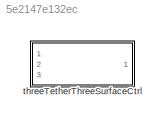
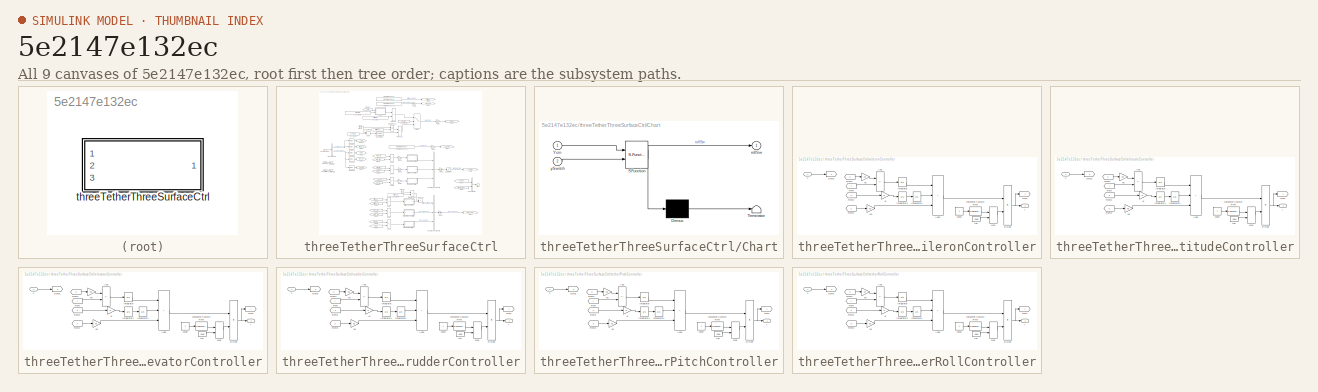
[diagram: thumbnail index - all 9 canvases of the model, root first then tree order]
MODEL slx_5e2147e132ec
KIND library
CONFIG AbsTol = auto
CONFIG EnableMultiTasking = off
CONFIG FixedStep = auto
CONFIG MaxStep = auto
CONFIG MinStep = auto
CONFIG RelTol = 1e-3
CONFIG SampleTimeConstraint = Unconstrained
CONFIG SolverName = VariableStepAuto
CONFIG StartTime = 0.0
CONFIG StopTime = 10.0
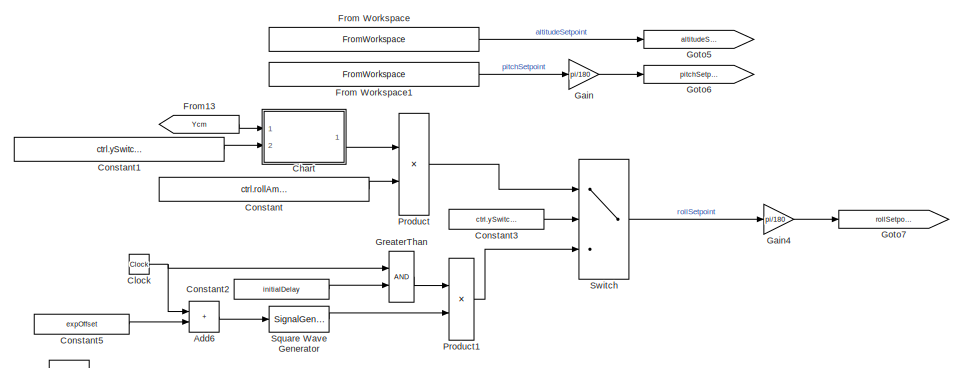
[diagram: threeTetherThreeSurfaceCtrl - part 1/2, top center region]
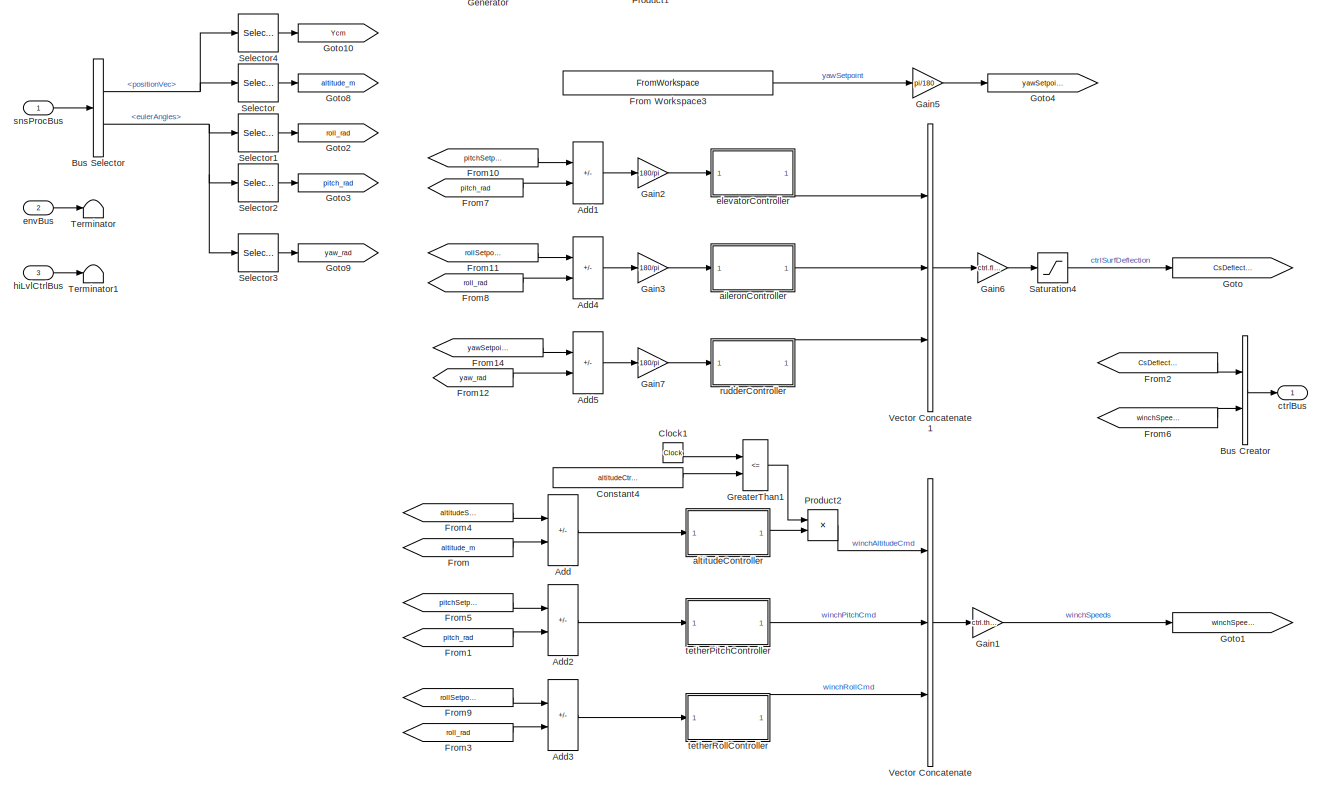
[diagram: threeTetherThreeSurfaceCtrl - part 2/2, full width, middle band]
BLOCK [SubSystem] threeTetherThreeSurfaceCtrl
  InitFcn = initializeBussesFromBlock(gcb)
  LoadFcn = initializeBussesFromBlock(gcb)
  Ports = [3, 1]
  RequestExecContextInheritance = off
  StartFcn = initializeBussesFromBlock(gcb)
  VariantControl = strcmpi(FLIGHTCONTROLLER,'threeTetherThreeSurfaceCtrl')
BLOCK [Sum] threeTetherThreeSurfaceCtrl/Add
  IconShape = rectangular
  Inputs = +-
  Ports = [2, 1]
BLOCK [Sum] threeTetherThreeSurfaceCtrl/Add1
  IconShape = rectangular
  Inputs = +-
  Ports = [2, 1]
BLOCK [Sum] threeTetherThreeSurfaceCtrl/Add2
  IconShape = rectangular
  Inputs = +-
  Ports = [2, 1]
BLOCK [Sum] threeTetherThreeSurfaceCtrl/Add3
  IconShape = rectangular
  Inputs = +-
  Ports = [2, 1]
BLOCK [Sum] threeTetherThreeSurfaceCtrl/Add4
  IconShape = rectangular
  Inputs = +-
  Ports = [2, 1]
BLOCK [Sum] threeTetherThreeSurfaceCtrl/Add5
  IconShape = rectangular
  Inputs = +-
  Ports = [2, 1]
BLOCK [Sum] threeTetherThreeSurfaceCtrl/Add6
  IconShape = rectangular
  Ports = [2, 1]
BLOCK [BusCreator] threeTetherThreeSurfaceCtrl/Bus Creator
  DisplayOption = bar
  InheritFromInputs = on
  Inputs = 2
  OutDataTypeStr = Bus: fltCtrlBus
  Ports = [2, 1]
BLOCK [BusSelector] threeTetherThreeSurfaceCtrl/Bus Selector
  OutputSignals = positionVec,eulerAngles
  Ports = [1, 2]
BLOCK [SubSystem] threeTetherThreeSurfaceCtrl/Chart
  ErrorFcn = Stateflow.Translate.translate
  PermitHierarchicalResolution = ExplicitOnly
  Ports = [2, 1]
  RequestExecContextInheritance = off
  SFBlockType = Chart
  TreatAsAtomicUnit = on
BLOCK [Demux] threeTetherThreeSurfaceCtrl/Chart/ Demux 
  Outputs = 1
  Ports = [1, 1]
BLOCK [S-Function] threeTetherThreeSurfaceCtrl/Chart/ SFunction 
  EnableBusSupport = off
  FunctionName = sf_sfun
  PortCounts = [2 2]
  Ports = [2, 2]
  SFcnIsStateOwnerBlock = off
  SFunctionDeploymentMode = off
  Tag = Stateflow S-Function 15
BLOCK [Terminator] threeTetherThreeSurfaceCtrl/Chart/ Terminator 
BLOCK [Inport] threeTetherThreeSurfaceCtrl/Chart/Ycm
BLOCK [Outport] threeTetherThreeSurfaceCtrl/Chart/rollSw
  VectorParamsAs1DForOutWhenUnconnected = off
BLOCK [Inport] threeTetherThreeSurfaceCtrl/Chart/ySwitch
  Port = 2
BLOCK [Clock] threeTetherThreeSurfaceCtrl/Clock
BLOCK [Clock] threeTetherThreeSurfaceCtrl/Clock1
BLOCK [Constant] threeTetherThreeSurfaceCtrl/Constant
  Value = ctrl.rollAmp.Value
BLOCK [Constant] threeTetherThreeSurfaceCtrl/Constant1
  Value = ctrl.ySwitch.Value
BLOCK [Constant] threeTetherThreeSurfaceCtrl/Constant2
  Value = initialDelay
BLOCK [Constant] threeTetherThreeSurfaceCtrl/Constant3
  Value = ctrl.ySwitch.Value
BLOCK [Constant] threeTetherThreeSurfaceCtrl/Constant4
  Value = altitudeCtrlShutOffDelay
BLOCK [Constant] threeTetherThreeSurfaceCtrl/Constant5
  Value = expOffset
BLOCK [From] threeTetherThreeSurfaceCtrl/From
  GotoTag = altitude_m
BLOCK [FromWorkspace] threeTetherThreeSurfaceCtrl/From Workspace
  VariableName = ctrl.altiSP.Value
BLOCK [FromWorkspace] threeTetherThreeSurfaceCtrl/From Workspace1
  VariableName = ctrl.pitchSP.Value
BLOCK [FromWorkspace] threeTetherThreeSurfaceCtrl/From Workspace3
  VariableName = ctrl.yawSP.Value
BLOCK [From] threeTetherThreeSurfaceCtrl/From1
  GotoTag = pitch_rad
BLOCK [From] threeTetherThreeSurfaceCtrl/From10
  GotoTag = pitchSetpoint_rad
BLOCK [From] threeTetherThreeSurfaceCtrl/From11
  GotoTag = rollSetpoint_rad
BLOCK [From] threeTetherThreeSurfaceCtrl/From12
  GotoTag = yaw_rad
BLOCK [From] threeTetherThreeSurfaceCtrl/From13
  GotoTag = Ycm
BLOCK [From] threeTetherThreeSurfaceCtrl/From14
  GotoTag = yawSetpoint_rad
BLOCK [From] threeTetherThreeSurfaceCtrl/From2
  GotoTag = CsDeflectn_deg
BLOCK [From] threeTetherThreeSurfaceCtrl/From3
  GotoTag = roll_rad
BLOCK [From] threeTetherThreeSurfaceCtrl/From4
  GotoTag = altitudeSetpoint_m
BLOCK [From] threeTetherThreeSurfaceCtrl/From5
  GotoTag = pitchSetpoint_rad
BLOCK [From] threeTetherThreeSurfaceCtrl/From6
  GotoTag = winchSpeeds_mPs
BLOCK [From] threeTetherThreeSurfaceCtrl/From7
  GotoTag = pitch_rad
BLOCK [From] threeTetherThreeSurfaceCtrl/From8
  GotoTag = roll_rad
BLOCK [From] threeTetherThreeSurfaceCtrl/From9
  GotoTag = rollSetpoint_rad
BLOCK [Gain] threeTetherThreeSurfaceCtrl/Gain
  Gain = pi/180
BLOCK [Gain] threeTetherThreeSurfaceCtrl/Gain1
  Gain = ctrl.thrAllocationMat.Value
  Multiplication = Matrix(K*u)
BLOCK [Gain] threeTetherThreeSurfaceCtrl/Gain2
  Gain = 180/pi
BLOCK [Gain] threeTetherThreeSurfaceCtrl/Gain3
  Gain = 180/pi
BLOCK [Gain] threeTetherThreeSurfaceCtrl/Gain4
  Gain = pi/180
BLOCK [Gain] threeTetherThreeSurfaceCtrl/Gain5
  Gain = pi/180
BLOCK [Gain] threeTetherThreeSurfaceCtrl/Gain6
  Gain = ctrl.fltCtrlSurfAllocationMat.Value
  Multiplication = Matrix(K*u)
BLOCK [Gain] threeTetherThreeSurfaceCtrl/Gain7
  Gain = 180/pi
BLOCK [Goto] threeTetherThreeSurfaceCtrl/Goto
  GotoTag = CsDeflectn_deg
BLOCK [Goto] threeTetherThreeSurfaceCtrl/Goto1
  GotoTag = winchSpeeds_mPs
BLOCK [Goto] threeTetherThreeSurfaceCtrl/Goto10
  GotoTag = Ycm
BLOCK [Goto] threeTetherThreeSurfaceCtrl/Goto2
  GotoTag = roll_rad
BLOCK [Goto] threeTetherThreeSurfaceCtrl/Goto3
  GotoTag = pitch_rad
BLOCK [Goto] threeTetherThreeSurfaceCtrl/Goto4
  GotoTag = yawSetpoint_rad
BLOCK [Goto] threeTetherThreeSurfaceCtrl/Goto5
  GotoTag = altitudeSetpoint_m
BLOCK [Goto] threeTetherThreeSurfaceCtrl/Goto6
  GotoTag = pitchSetpoint_rad
BLOCK [Goto] threeTetherThreeSurfaceCtrl/Goto7
  GotoTag = rollSetpoint_rad
BLOCK [Goto] threeTetherThreeSurfaceCtrl/Goto8
  GotoTag = altitude_m
BLOCK [Goto] threeTetherThreeSurfaceCtrl/Goto9
  GotoTag = yaw_rad
BLOCK [RelationalOperator] threeTetherThreeSurfaceCtrl/GreaterThan
  InputSameDT = off
  OutDataTypeStr = boolean
  Ports = [2, 1]
  RndMeth = Simplest
BLOCK [RelationalOperator] threeTetherThreeSurfaceCtrl/GreaterThan1
  InputSameDT = off
  Operator = <=
  OutDataTypeStr = boolean
  Ports = [2, 1]
  RndMeth = Simplest
BLOCK [Product] threeTetherThreeSurfaceCtrl/Product
  Ports = [2, 1]
BLOCK [Product] threeTetherThreeSurfaceCtrl/Product1
  Ports = [2, 1]
BLOCK [Product] threeTetherThreeSurfaceCtrl/Product2
  Ports = [2, 1]
BLOCK [Saturate] threeTetherThreeSurfaceCtrl/Saturation4
  LowerLimit = ctrl.outputSat.lowerLimit.Value
  UpperLimit = ctrl.outputSat.upperLimit.Value
BLOCK [Selector] threeTetherThreeSurfaceCtrl/Selector
  IndexOptions = Index vector (dialog)
  Indices = 3
  InputPortWidth = 3
  OutputSizes = 1
  Ports = [1, 1]
BLOCK [Selector] threeTetherThreeSurfaceCtrl/Selector1
  IndexOptions = Index vector (dialog)
  Indices = 1
  InputPortWidth = 3
  OutputSizes = 1
  Ports = [1, 1]
BLOCK [Selector] threeTetherThreeSurfaceCtrl/Selector2
  IndexOptions = Index vector (dialog)
  Indices = 2
  InputPortWidth = 3
  OutputSizes = 1
  Ports = [1, 1]
BLOCK [Selector] threeTetherThreeSurfaceCtrl/Selector3
  IndexOptions = Index vector (dialog)
  Indices = 3
  InputPortWidth = 3
  OutputSizes = 1
  Ports = [1, 1]
BLOCK [Selector] threeTetherThreeSurfaceCtrl/Selector4
  IndexOptions = Index vector (dialog)
  Indices = 2
  InputPortWidth = 3
  OutputSizes = 1
  Ports = [1, 1]
BLOCK [SignalGenerator] threeTetherThreeSurfaceCtrl/Square Wave Generator
  Amplitude = ctrl.rollAmp.Value
  Frequency = 1/ctrl.rollPeriod.Value
  Ports = [1, 1]
  TimeSource = Use external signal
  WaveForm = square
BLOCK [Switch] threeTetherThreeSurfaceCtrl/Switch
  Criteria = u2 ~= 0
  InputSameDT = off
  SaturateOnIntegerOverflow = off
BLOCK [Terminator] threeTetherThreeSurfaceCtrl/Terminator
BLOCK [Terminator] threeTetherThreeSurfaceCtrl/Terminator1
BLOCK [Concatenate] threeTetherThreeSurfaceCtrl/Vector Concatenate
  NumInputs = 3
  Ports = [3, 1]
BLOCK [Concatenate] threeTetherThreeSurfaceCtrl/Vector Concatenate1
  NumInputs = 3
  Ports = [3, 1]
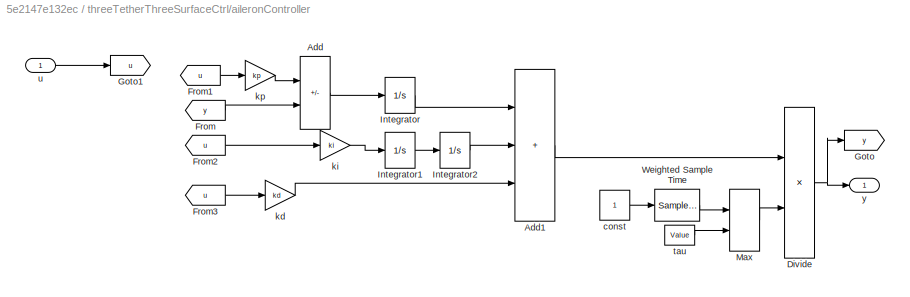
BLOCK [SubSystem] threeTetherThreeSurfaceCtrl/aileronController
  AncestorBlock = filteredPIDController_ul/filteredPIDController
  Ports = [1, 1]
  RequestExecContextInheritance = off
BLOCK [Sum] threeTetherThreeSurfaceCtrl/aileronController/Add
  IconShape = rectangular
  Inputs = +-
  Ports = [2, 1]
BLOCK [Sum] threeTetherThreeSurfaceCtrl/aileronController/Add1
  IconShape = rectangular
  Inputs = +++
  Ports = [3, 1]
BLOCK [Product] threeTetherThreeSurfaceCtrl/aileronController/Divide
  Inputs = */
  Ports = [2, 1]
BLOCK [From] threeTetherThreeSurfaceCtrl/aileronController/From
  GotoTag = y
BLOCK [From] threeTetherThreeSurfaceCtrl/aileronController/From1
  GotoTag = u
BLOCK [From] threeTetherThreeSurfaceCtrl/aileronController/From2
  GotoTag = u
BLOCK [From] threeTetherThreeSurfaceCtrl/aileronController/From3
  GotoTag = u
BLOCK [Goto] threeTetherThreeSurfaceCtrl/aileronController/Goto
  GotoTag = y
BLOCK [Goto] threeTetherThreeSurfaceCtrl/aileronController/Goto1
  GotoTag = u
BLOCK [Integrator] threeTetherThreeSurfaceCtrl/aileronController/Integrator
  Ports = [1, 1]
BLOCK [Integrator] threeTetherThreeSurfaceCtrl/aileronController/Integrator1
  Ports = [1, 1]
BLOCK [Integrator] threeTetherThreeSurfaceCtrl/aileronController/Integrator2
  Ports = [1, 1]
BLOCK [MinMax] threeTetherThreeSurfaceCtrl/aileronController/Max
  Function = max
  Inputs = 2
  Ports = [2, 1]
BLOCK [SampleTimeMath] threeTetherThreeSurfaceCtrl/aileronController/Weighted Sample Time
  TsampMathOp = Ts Only
BLOCK [Constant] threeTetherThreeSurfaceCtrl/aileronController/const
BLOCK [Gain] threeTetherThreeSurfaceCtrl/aileronController/kd
  Gain = kd
BLOCK [Gain] threeTetherThreeSurfaceCtrl/aileronController/ki
  Gain = ki
BLOCK [Gain] threeTetherThreeSurfaceCtrl/aileronController/kp
  Gain = kp
BLOCK [Constant] threeTetherThreeSurfaceCtrl/aileronController/tau
  Value = Value
BLOCK [Inport] threeTetherThreeSurfaceCtrl/aileronController/u
  PortDimensions = 1
BLOCK [Outport] threeTetherThreeSurfaceCtrl/aileronController/y
  PortDimensions = 1
  VectorParamsAs1DForOutWhenUnconnected = off
BLOCK [SubSystem] threeTetherThreeSurfaceCtrl/altitudeController
  AncestorBlock = filteredPIDController_ul/filteredPIDController
  Ports = [1, 1]
  RequestExecContextInheritance = off
BLOCK [Sum] threeTetherThreeSurfaceCtrl/altitudeController/Add
  IconShape = rectangular
  Inputs = +-
  Ports = [2, 1]
BLOCK [Sum] threeTetherThreeSurfaceCtrl/altitudeController/Add1
  IconShape = rectangular
  Inputs = +++
  Ports = [3, 1]
BLOCK [Product] threeTetherThreeSurfaceCtrl/altitudeController/Divide
  Inputs = */
  Ports = [2, 1]
BLOCK [From] threeTetherThreeSurfaceCtrl/altitudeController/From
  GotoTag = y
BLOCK [From] threeTetherThreeSurfaceCtrl/altitudeController/From1
  GotoTag = u
BLOCK [From] threeTetherThreeSurfaceCtrl/altitudeController/From2
  GotoTag = u
BLOCK [From] threeTetherThreeSurfaceCtrl/altitudeController/From3
  GotoTag = u
BLOCK [Goto] threeTetherThreeSurfaceCtrl/altitudeController/Goto
  GotoTag = y
BLOCK [Goto] threeTetherThreeSurfaceCtrl/altitudeController/Goto1
  GotoTag = u
BLOCK [Integrator] threeTetherThreeSurfaceCtrl/altitudeController/Integrator
  Ports = [1, 1]
BLOCK [Integrator] threeTetherThreeSurfaceCtrl/altitudeController/Integrator1
  Ports = [1, 1]
BLOCK [Integrator] threeTetherThreeSurfaceCtrl/altitudeController/Integrator2
  Ports = [1, 1]
BLOCK [MinMax] threeTetherThreeSurfaceCtrl/altitudeController/Max
  Function = max
  Inputs = 2
  Ports = [2, 1]
BLOCK [SampleTimeMath] threeTetherThreeSurfaceCtrl/altitudeController/Weighted Sample Time
  TsampMathOp = Ts Only
BLOCK [Constant] threeTetherThreeSurfaceCtrl/altitudeController/const
BLOCK [Gain] threeTetherThreeSurfaceCtrl/altitudeController/kd
  Gain = kd
BLOCK [Gain] threeTetherThreeSurfaceCtrl/altitudeController/ki
  Gain = ki
BLOCK [Gain] threeTetherThreeSurfaceCtrl/altitudeController/kp
  Gain = kp
BLOCK [Constant] threeTetherThreeSurfaceCtrl/altitudeController/tau
  Value = Value
BLOCK [Inport] threeTetherThreeSurfaceCtrl/altitudeController/u
  PortDimensions = 1
BLOCK [Outport] threeTetherThreeSurfaceCtrl/altitudeController/y
  PortDimensions = 1
  VectorParamsAs1DForOutWhenUnconnected = off
BLOCK [Outport] threeTetherThreeSurfaceCtrl/ctrlBus
  OutDataTypeStr = Bus: fltCtrlBus
  VectorParamsAs1DForOutWhenUnconnected = off
BLOCK [SubSystem] threeTetherThreeSurfaceCtrl/elevatorController
  AncestorBlock = filteredPIDController_ul/filteredPIDController
  Ports = [1, 1]
  RequestExecContextInheritance = off
BLOCK [Sum] threeTetherThreeSurfaceCtrl/elevatorController/Add
  IconShape = rectangular
  Inputs = +-
  Ports = [2, 1]
BLOCK [Sum] threeTetherThreeSurfaceCtrl/elevatorController/Add1
  IconShape = rectangular
  Inputs = +++
  Ports = [3, 1]
BLOCK [Product] threeTetherThreeSurfaceCtrl/elevatorController/Divide
  Inputs = */
  Ports = [2, 1]
BLOCK [From] threeTetherThreeSurfaceCtrl/elevatorController/From
  GotoTag = y
BLOCK [From] threeTetherThreeSurfaceCtrl/elevatorController/From1
  GotoTag = u
BLOCK [From] threeTetherThreeSurfaceCtrl/elevatorController/From2
  GotoTag = u
BLOCK [From] threeTetherThreeSurfaceCtrl/elevatorController/From3
  GotoTag = u
BLOCK [Goto] threeTetherThreeSurfaceCtrl/elevatorController/Goto
  GotoTag = y
BLOCK [Goto] threeTetherThreeSurfaceCtrl/elevatorController/Goto1
  GotoTag = u
BLOCK [Integrator] threeTetherThreeSurfaceCtrl/elevatorController/Integrator
  Ports = [1, 1]
BLOCK [Integrator] threeTetherThreeSurfaceCtrl/elevatorController/Integrator1
  Ports = [1, 1]
BLOCK [Integrator] threeTetherThreeSurfaceCtrl/elevatorController/Integrator2
  Ports = [1, 1]
BLOCK [MinMax] threeTetherThreeSurfaceCtrl/elevatorController/Max
  Function = max
  Inputs = 2
  Ports = [2, 1]
BLOCK [SampleTimeMath] threeTetherThreeSurfaceCtrl/elevatorController/Weighted Sample Time
  TsampMathOp = Ts Only
BLOCK [Constant] threeTetherThreeSurfaceCtrl/elevatorController/const
BLOCK [Gain] threeTetherThreeSurfaceCtrl/elevatorController/kd
  Gain = kd
BLOCK [Gain] threeTetherThreeSurfaceCtrl/elevatorController/ki
  Gain = ki
BLOCK [Gain] threeTetherThreeSurfaceCtrl/elevatorController/kp
  Gain = kp
BLOCK [Constant] threeTetherThreeSurfaceCtrl/elevatorController/tau
  Value = Value
BLOCK [Inport] threeTetherThreeSurfaceCtrl/elevatorController/u
  PortDimensions = 1
BLOCK [Outport] threeTetherThreeSurfaceCtrl/elevatorController/y
  PortDimensions = 1
  VectorParamsAs1DForOutWhenUnconnected = off
BLOCK [Inport] threeTetherThreeSurfaceCtrl/envBus
  OutDataTypeStr = Bus: envBus
  Port = 2
BLOCK [Inport] threeTetherThreeSurfaceCtrl/hiLvlCtrlBus
  OutDataTypeStr = Bus: hiLvlCtrlBus
  Port = 3
BLOCK [SubSystem] threeTetherThreeSurfaceCtrl/rudderController
  AncestorBlock = filteredPIDController_ul/filteredPIDController
  Ports = [1, 1]
  RequestExecContextInheritance = off
BLOCK [Sum] threeTetherThreeSurfaceCtrl/rudderController/Add
  IconShape = rectangular
  Inputs = +-
  Ports = [2, 1]
BLOCK [Sum] threeTetherThreeSurfaceCtrl/rudderController/Add1
  IconShape = rectangular
  Inputs = +++
  Ports = [3, 1]
BLOCK [Product] threeTetherThreeSurfaceCtrl/rudderController/Divide
  Inputs = */
  Ports = [2, 1]
BLOCK [From] threeTetherThreeSurfaceCtrl/rudderController/From
  GotoTag = y
BLOCK [From] threeTetherThreeSurfaceCtrl/rudderController/From1
  GotoTag = u
BLOCK [From] threeTetherThreeSurfaceCtrl/rudderController/From2
  GotoTag = u
BLOCK [From] threeTetherThreeSurfaceCtrl/rudderController/From3
  GotoTag = u
BLOCK [Goto] threeTetherThreeSurfaceCtrl/rudderController/Goto
  GotoTag = y
BLOCK [Goto] threeTetherThreeSurfaceCtrl/rudderController/Goto1
  GotoTag = u
BLOCK [Integrator] threeTetherThreeSurfaceCtrl/rudderController/Integrator
  Ports = [1, 1]
BLOCK [Integrator] threeTetherThreeSurfaceCtrl/rudderController/Integrator1
  Ports = [1, 1]
BLOCK [Integrator] threeTetherThreeSurfaceCtrl/rudderController/Integrator2
  Ports = [1, 1]
BLOCK [MinMax] threeTetherThreeSurfaceCtrl/rudderController/Max
  Function = max
  Inputs = 2
  Ports = [2, 1]
BLOCK [SampleTimeMath] threeTetherThreeSurfaceCtrl/rudderController/Weighted Sample Time
  TsampMathOp = Ts Only
BLOCK [Constant] threeTetherThreeSurfaceCtrl/rudderController/const
BLOCK [Gain] threeTetherThreeSurfaceCtrl/rudderController/kd
  Gain = kd
BLOCK [Gain] threeTetherThreeSurfaceCtrl/rudderController/ki
  Gain = ki
BLOCK [Gain] threeTetherThreeSurfaceCtrl/rudderController/kp
  Gain = kp
BLOCK [Constant] threeTetherThreeSurfaceCtrl/rudderController/tau
  Value = Value
BLOCK [Inport] threeTetherThreeSurfaceCtrl/rudderController/u
  PortDimensions = 1
BLOCK [Outport] threeTetherThreeSurfaceCtrl/rudderController/y
  PortDimensions = 1
  VectorParamsAs1DForOutWhenUnconnected = off
BLOCK [Inport] threeTetherThreeSurfaceCtrl/snsProcBus
  OutDataTypeStr = Bus: sensorsProcessingBus
BLOCK [SubSystem] threeTetherThreeSurfaceCtrl/tetherPitchController
  AncestorBlock = filteredPIDController_ul/filteredPIDController
  Ports = [1, 1]
  RequestExecContextInheritance = off
BLOCK [Sum] threeTetherThreeSurfaceCtrl/tetherPitchController/Add
  IconShape = rectangular
  Inputs = +-
  Ports = [2, 1]
BLOCK [Sum] threeTetherThreeSurfaceCtrl/tetherPitchController/Add1
  IconShape = rectangular
  Inputs = +++
  Ports = [3, 1]
BLOCK [Product] threeTetherThreeSurfaceCtrl/tetherPitchController/Divide
  Inputs = */
  Ports = [2, 1]
BLOCK [From] threeTetherThreeSurfaceCtrl/tetherPitchController/From
  GotoTag = y
BLOCK [From] threeTetherThreeSurfaceCtrl/tetherPitchController/From1
  GotoTag = u
BLOCK [From] threeTetherThreeSurfaceCtrl/tetherPitchController/From2
  GotoTag = u
BLOCK [From] threeTetherThreeSurfaceCtrl/tetherPitchController/From3
  GotoTag = u
BLOCK [Goto] threeTetherThreeSurfaceCtrl/tetherPitchController/Goto
  GotoTag = y
BLOCK [Goto] threeTetherThreeSurfaceCtrl/tetherPitchController/Goto1
  GotoTag = u
BLOCK [Integrator] threeTetherThreeSurfaceCtrl/tetherPitchController/Integrator
  Ports = [1, 1]
BLOCK [Integrator] threeTetherThreeSurfaceCtrl/tetherPitchController/Integrator1
  Ports = [1, 1]
BLOCK [Integrator] threeTetherThreeSurfaceCtrl/tetherPitchController/Integrator2
  Ports = [1, 1]
BLOCK [MinMax] threeTetherThreeSurfaceCtrl/tetherPitchController/Max
  Function = max
  Inputs = 2
  Ports = [2, 1]
BLOCK [SampleTimeMath] threeTetherThreeSurfaceCtrl/tetherPitchController/Weighted Sample Time
  TsampMathOp = Ts Only
BLOCK [Constant] threeTetherThreeSurfaceCtrl/tetherPitchController/const
BLOCK [Gain] threeTetherThreeSurfaceCtrl/tetherPitchController/kd
  Gain = kd
BLOCK [Gain] threeTetherThreeSurfaceCtrl/tetherPitchController/ki
  Gain = ki
BLOCK [Gain] threeTetherThreeSurfaceCtrl/tetherPitchController/kp
  Gain = kp
BLOCK [Constant] threeTetherThreeSurfaceCtrl/tetherPitchController/tau
  Value = Value
BLOCK [Inport] threeTetherThreeSurfaceCtrl/tetherPitchController/u
  PortDimensions = 1
BLOCK [Outport] threeTetherThreeSurfaceCtrl/tetherPitchController/y
  PortDimensions = 1
  VectorParamsAs1DForOutWhenUnconnected = off
BLOCK [SubSystem] threeTetherThreeSurfaceCtrl/tetherRollController
  AncestorBlock = filteredPIDController_ul/filteredPIDController
  Ports = [1, 1]
  RequestExecContextInheritance = off
BLOCK [Sum] threeTetherThreeSurfaceCtrl/tetherRollController/Add
  IconShape = rectangular
  Inputs = +-
  Ports = [2, 1]
BLOCK [Sum] threeTetherThreeSurfaceCtrl/tetherRollController/Add1
  IconShape = rectangular
  Inputs = +++
  Ports = [3, 1]
BLOCK [Product] threeTetherThreeSurfaceCtrl/tetherRollController/Divide
  Inputs = */
  Ports = [2, 1]
BLOCK [From] threeTetherThreeSurfaceCtrl/tetherRollController/From
  GotoTag = y
BLOCK [From] threeTetherThreeSurfaceCtrl/tetherRollController/From1
  GotoTag = u
BLOCK [From] threeTetherThreeSurfaceCtrl/tetherRollController/From2
  GotoTag = u
BLOCK [From] threeTetherThreeSurfaceCtrl/tetherRollController/From3
  GotoTag = u
BLOCK [Goto] threeTetherThreeSurfaceCtrl/tetherRollController/Goto
  GotoTag = y
BLOCK [Goto] threeTetherThreeSurfaceCtrl/tetherRollController/Goto1
  GotoTag = u
BLOCK [Integrator] threeTetherThreeSurfaceCtrl/tetherRollController/Integrator
  Ports = [1, 1]
BLOCK [Integrator] threeTetherThreeSurfaceCtrl/tetherRollController/Integrator1
  Ports = [1, 1]
BLOCK [Integrator] threeTetherThreeSurfaceCtrl/tetherRollController/Integrator2
  Ports = [1, 1]
BLOCK [MinMax] threeTetherThreeSurfaceCtrl/tetherRollController/Max
  Function = max
  Inputs = 2
  Ports = [2, 1]
BLOCK [SampleTimeMath] threeTetherThreeSurfaceCtrl/tetherRollController/Weighted Sample Time
  TsampMathOp = Ts Only
BLOCK [Constant] threeTetherThreeSurfaceCtrl/tetherRollController/const
BLOCK [Gain] threeTetherThreeSurfaceCtrl/tetherRollController/kd
  Gain = kd
BLOCK [Gain] threeTetherThreeSurfaceCtrl/tetherRollController/ki
  Gain = ki
BLOCK [Gain] threeTetherThreeSurfaceCtrl/tetherRollController/kp
  Gain = kp
BLOCK [Constant] threeTetherThreeSurfaceCtrl/tetherRollController/tau
  Value = Value
BLOCK [Inport] threeTetherThreeSurfaceCtrl/tetherRollController/u
  PortDimensions = 1
BLOCK [Outport] threeTetherThreeSurfaceCtrl/tetherRollController/y
  PortDimensions = 1
  VectorParamsAs1DForOutWhenUnconnected = off
LINE threeTetherThreeSurfaceCtrl/Add1:1 -> threeTetherThreeSurfaceCtrl/Gain2:1
LINE threeTetherThreeSurfaceCtrl/Add2:1 -> threeTetherThreeSurfaceCtrl/tetherPitchController:1
LINE threeTetherThreeSurfaceCtrl/Add3:1 -> threeTetherThreeSurfaceCtrl/tetherRollController:1
LINE threeTetherThreeSurfaceCtrl/Add4:1 -> threeTetherThreeSurfaceCtrl/Gain3:1
LINE threeTetherThreeSurfaceCtrl/Add5:1 -> threeTetherThreeSurfaceCtrl/Gain7:1
LINE threeTetherThreeSurfaceCtrl/Add6:1 -> threeTetherThreeSurfaceCtrl/Square Wave Generator:1
LINE threeTetherThreeSurfaceCtrl/Add:1 -> threeTetherThreeSurfaceCtrl/altitudeController:1
LINE threeTetherThreeSurfaceCtrl/Bus Creator:1 -> threeTetherThreeSurfaceCtrl/ctrlBus:1
NET threeTetherThreeSurfaceCtrl/Bus Selector:1 -> threeTetherThreeSurfaceCtrl/Selector4:1, threeTetherThreeSurfaceCtrl/Selector:1
NET threeTetherThreeSurfaceCtrl/Bus Selector:2 -> threeTetherThreeSurfaceCtrl/Selector1:1, threeTetherThreeSurfaceCtrl/Selector2:1, threeTetherThreeSurfaceCtrl/Selector3:1
LINE threeTetherThreeSurfaceCtrl/Chart:1 -> threeTetherThreeSurfaceCtrl/Product:1
LINE threeTetherThreeSurfaceCtrl/Clock1:1 -> threeTetherThreeSurfaceCtrl/GreaterThan1:1
NET threeTetherThreeSurfaceCtrl/Clock:1 -> threeTetherThreeSurfaceCtrl/Add6:1, threeTetherThreeSurfaceCtrl/GreaterThan:1
LINE threeTetherThreeSurfaceCtrl/Constant1:1 -> threeTetherThreeSurfaceCtrl/Chart:2
LINE threeTetherThreeSurfaceCtrl/Constant2:1 -> threeTetherThreeSurfaceCtrl/GreaterThan:2
LINE threeTetherThreeSurfaceCtrl/Constant3:1 -> threeTetherThreeSurfaceCtrl/Switch:2
LINE threeTetherThreeSurfaceCtrl/Constant4:1 -> threeTetherThreeSurfaceCtrl/GreaterThan1:2
LINE threeTetherThreeSurfaceCtrl/Constant5:1 -> threeTetherThreeSurfaceCtrl/Add6:2
LINE threeTetherThreeSurfaceCtrl/Constant:1 -> threeTetherThreeSurfaceCtrl/Product:2
LINE threeTetherThreeSurfaceCtrl/From Workspace1:1 -> threeTetherThreeSurfaceCtrl/Gain:1
LINE threeTetherThreeSurfaceCtrl/From Workspace3:1 -> threeTetherThreeSurfaceCtrl/Gain5:1
LINE threeTetherThreeSurfaceCtrl/From Workspace:1 -> threeTetherThreeSurfaceCtrl/Goto5:1
LINE threeTetherThreeSurfaceCtrl/From10:1 -> threeTetherThreeSurfaceCtrl/Add1:1
LINE threeTetherThreeSurfaceCtrl/From11:1 -> threeTetherThreeSurfaceCtrl/Add4:1
LINE threeTetherThreeSurfaceCtrl/From12:1 -> threeTetherThreeSurfaceCtrl/Add5:2
LINE threeTetherThreeSurfaceCtrl/From13:1 -> threeTetherThreeSurfaceCtrl/Chart:1
LINE threeTetherThreeSurfaceCtrl/From14:1 -> threeTetherThreeSurfaceCtrl/Add5:1
LINE threeTetherThreeSurfaceCtrl/From1:1 -> threeTetherThreeSurfaceCtrl/Add2:2
LINE threeTetherThreeSurfaceCtrl/From2:1 -> threeTetherThreeSurfaceCtrl/Bus Creator:1
LINE threeTetherThreeSurfaceCtrl/From3:1 -> threeTetherThreeSurfaceCtrl/Add3:2
LINE threeTetherThreeSurfaceCtrl/From4:1 -> threeTetherThreeSurfaceCtrl/Add:1
LINE threeTetherThreeSurfaceCtrl/From5:1 -> threeTetherThreeSurfaceCtrl/Add2:1
LINE threeTetherThreeSurfaceCtrl/From6:1 -> threeTetherThreeSurfaceCtrl/Bus Creator:2
LINE threeTetherThreeSurfaceCtrl/From7:1 -> threeTetherThreeSurfaceCtrl/Add1:2
LINE threeTetherThreeSurfaceCtrl/From8:1 -> threeTetherThreeSurfaceCtrl/Add4:2
LINE threeTetherThreeSurfaceCtrl/From9:1 -> threeTetherThreeSurfaceCtrl/Add3:1
LINE threeTetherThreeSurfaceCtrl/From:1 -> threeTetherThreeSurfaceCtrl/Add:2
LINE threeTetherThreeSurfaceCtrl/Gain1:1 -> threeTetherThreeSurfaceCtrl/Goto1:1
LINE threeTetherThreeSurfaceCtrl/Gain2:1 -> threeTetherThreeSurfaceCtrl/elevatorController:1
LINE threeTetherThreeSurfaceCtrl/Gain3:1 -> threeTetherThreeSurfaceCtrl/aileronController:1
LINE threeTetherThreeSurfaceCtrl/Gain4:1 -> threeTetherThreeSurfaceCtrl/Goto7:1
LINE threeTetherThreeSurfaceCtrl/Gain5:1 -> threeTetherThreeSurfaceCtrl/Goto4:1
LINE threeTetherThreeSurfaceCtrl/Gain6:1 -> threeTetherThreeSurfaceCtrl/Saturation4:1
LINE threeTetherThreeSurfaceCtrl/Gain7:1 -> threeTetherThreeSurfaceCtrl/rudderController:1
LINE threeTetherThreeSurfaceCtrl/Gain:1 -> threeTetherThreeSurfaceCtrl/Goto6:1
LINE threeTetherThreeSurfaceCtrl/GreaterThan1:1 -> threeTetherThreeSurfaceCtrl/Product2:1
LINE threeTetherThreeSurfaceCtrl/GreaterThan:1 -> threeTetherThreeSurfaceCtrl/Product1:1
LINE threeTetherThreeSurfaceCtrl/Product1:1 -> threeTetherThreeSurfaceCtrl/Switch:3
LINE threeTetherThreeSurfaceCtrl/Product2:1 -> threeTetherThreeSurfaceCtrl/Vector Concatenate:1
LINE threeTetherThreeSurfaceCtrl/Product:1 -> threeTetherThreeSurfaceCtrl/Switch:1
LINE threeTetherThreeSurfaceCtrl/Saturation4:1 -> threeTetherThreeSurfaceCtrl/Goto:1
LINE threeTetherThreeSurfaceCtrl/Selector1:1 -> threeTetherThreeSurfaceCtrl/Goto2:1
LINE threeTetherThreeSurfaceCtrl/Selector2:1 -> threeTetherThreeSurfaceCtrl/Goto3:1
LINE threeTetherThreeSurfaceCtrl/Selector3:1 -> threeTetherThreeSurfaceCtrl/Goto9:1
LINE threeTetherThreeSurfaceCtrl/Selector4:1 -> threeTetherThreeSurfaceCtrl/Goto10:1
LINE threeTetherThreeSurfaceCtrl/Selector:1 -> threeTetherThreeSurfaceCtrl/Goto8:1
LINE threeTetherThreeSurfaceCtrl/Square Wave Generator:1 -> threeTetherThreeSurfaceCtrl/Product1:2
LINE threeTetherThreeSurfaceCtrl/Switch:1 -> threeTetherThreeSurfaceCtrl/Gain4:1
LINE threeTetherThreeSurfaceCtrl/Vector Concatenate1:1 -> threeTetherThreeSurfaceCtrl/Gain6:1
LINE threeTetherThreeSurfaceCtrl/Vector Concatenate:1 -> threeTetherThreeSurfaceCtrl/Gain1:1
LINE threeTetherThreeSurfaceCtrl/aileronController:1 -> threeTetherThreeSurfaceCtrl/Vector Concatenate1:2
LINE threeTetherThreeSurfaceCtrl/altitudeController:1 -> threeTetherThreeSurfaceCtrl/Product2:2
LINE threeTetherThreeSurfaceCtrl/elevatorController:1 -> threeTetherThreeSurfaceCtrl/Vector Concatenate1:1
LINE threeTetherThreeSurfaceCtrl/envBus:1 -> threeTetherThreeSurfaceCtrl/Terminator:1
LINE threeTetherThreeSurfaceCtrl/hiLvlCtrlBus:1 -> threeTetherThreeSurfaceCtrl/Terminator1:1
LINE threeTetherThreeSurfaceCtrl/rudderController:1 -> threeTetherThreeSurfaceCtrl/Vector Concatenate1:3
LINE threeTetherThreeSurfaceCtrl/snsProcBus:1 -> threeTetherThreeSurfaceCtrl/Bus Selector:1
LINE threeTetherThreeSurfaceCtrl/tetherPitchController:1 -> threeTetherThreeSurfaceCtrl/Vector Concatenate:2
LINE threeTetherThreeSurfaceCtrl/tetherRollController:1 -> threeTetherThreeSurfaceCtrl/Vector Concatenate:3
note: NET lines group one-source signal fan-out (src -> all destinations, sorted); 1:1 wires keep LINE
CHART threeTetherThreeSurfaceCtrl/Chart states=2 transitions=3
  STATE_LABEL 'PositiveRoll\nentry:\nrollSw = 1;'
  STATE_LABEL 'NegativeRoll\nentry:\nrollSw = -1;'
CHART  states=0 transitions=0
